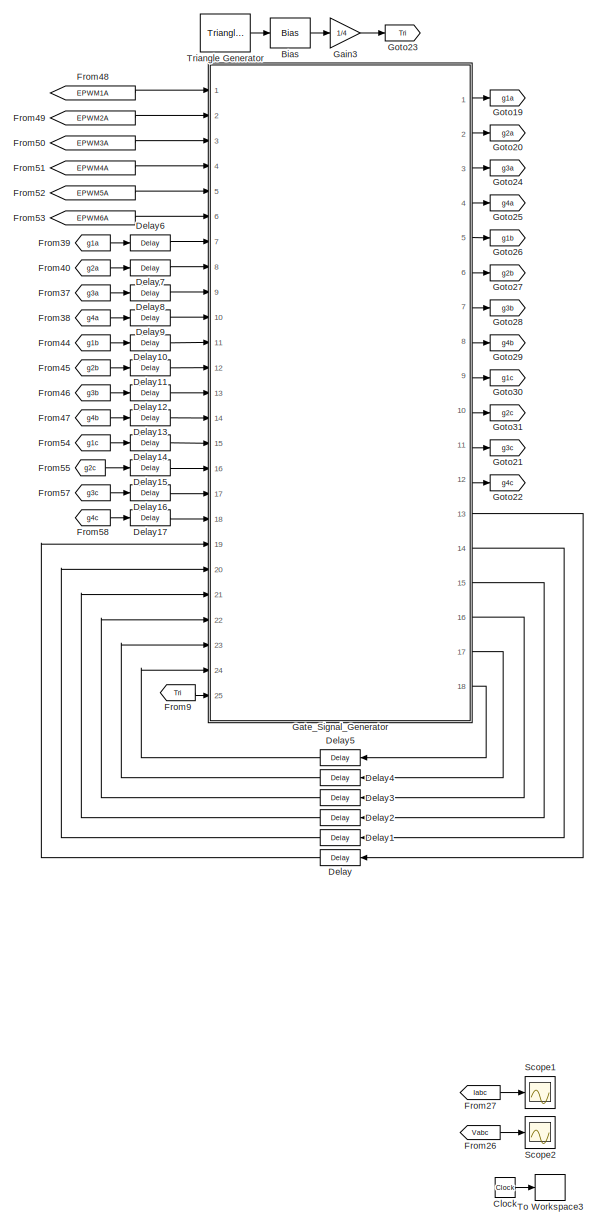
[diagram: root canvas - part 1/4, center side, full height]
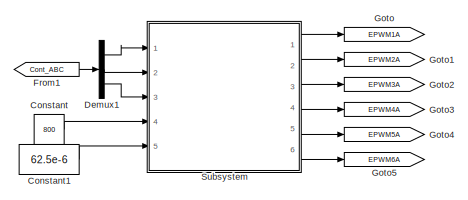
[diagram: root canvas - part 2/4, top left region]
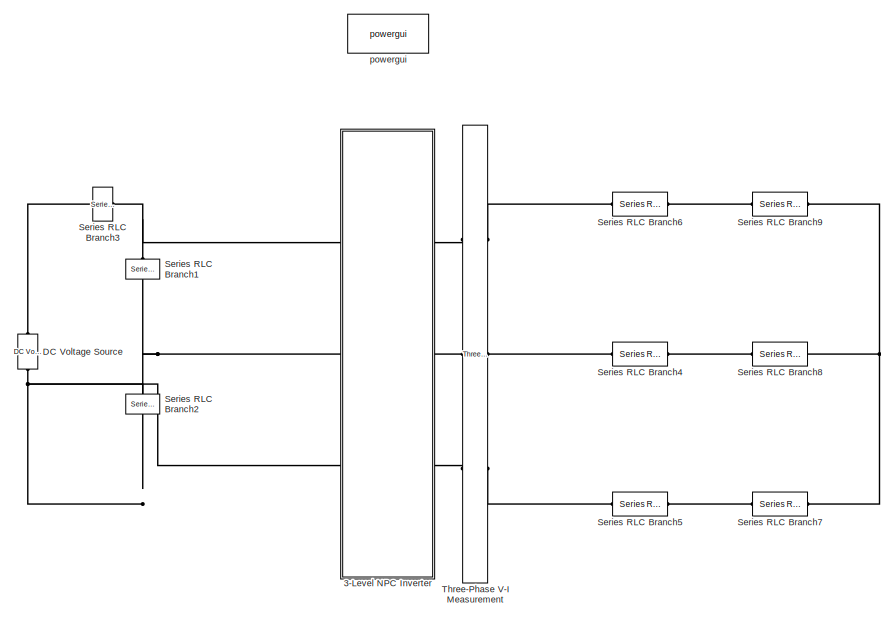
[diagram: root canvas - part 3/4, middle right region]
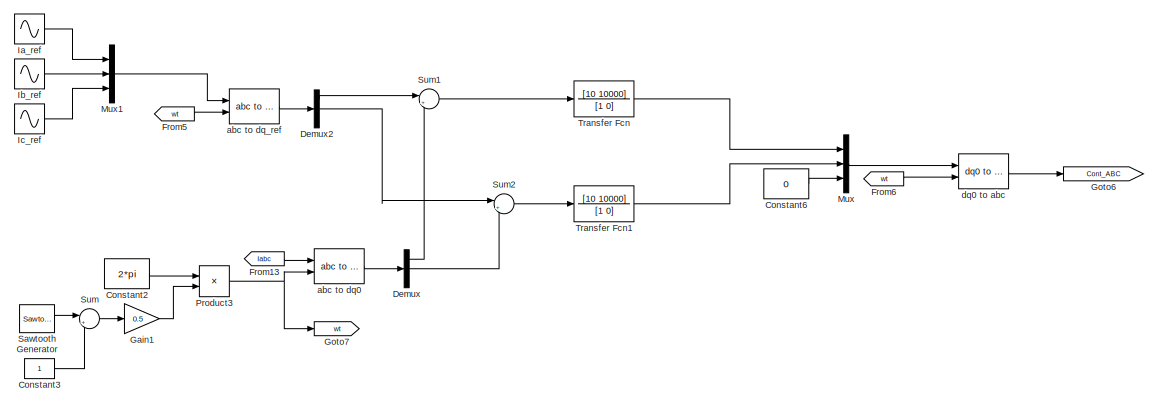
[diagram: root canvas - part 4/4, bottom right region]
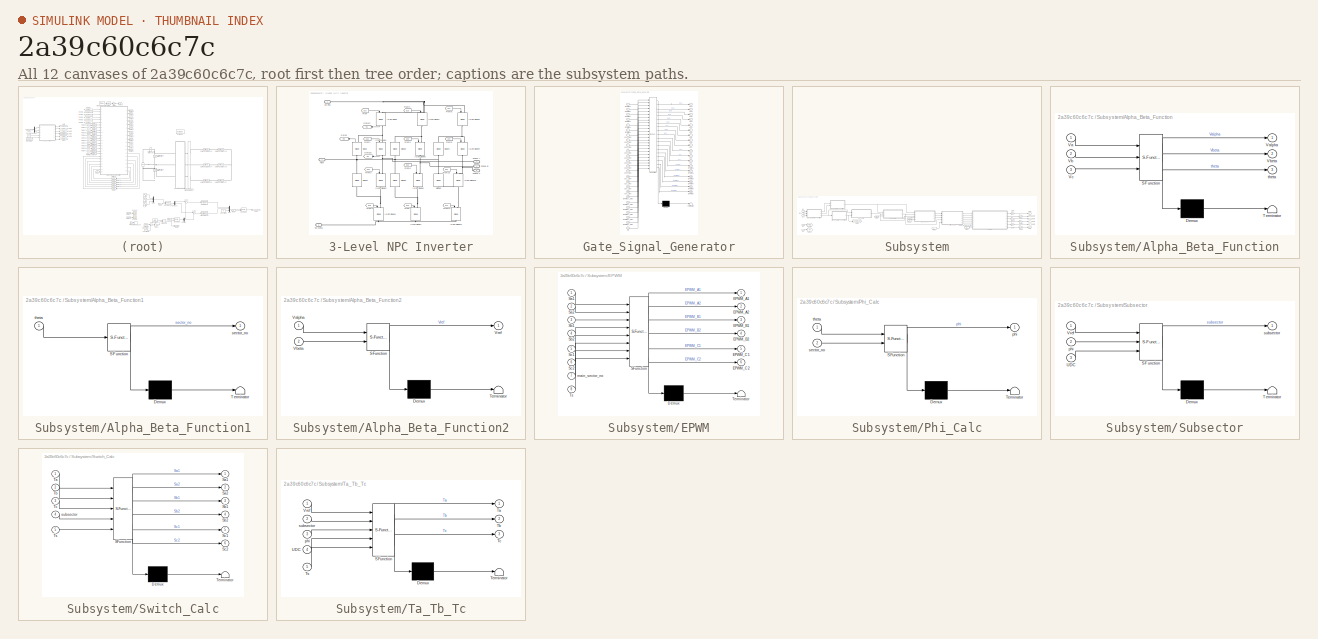
[diagram: thumbnail index - all 12 canvases of the model, root first then tree order]
MODEL slx_2a39c60c6c7c
KIND model
CONFIG AbsTol = auto
CONFIG EnableMultiTasking = off
CONFIG FixedStep = 5e-7
CONFIG MaxStep = auto
CONFIG MinStep = auto
CONFIG RelTol = 1e-3
CONFIG SampleTimeConstraint = Unconstrained
CONFIG Solver = FixedStepAuto
CONFIG SolverName = FixedStepAuto
CONFIG StartTime = 0.0
CONFIG StopTime = 2000e-3
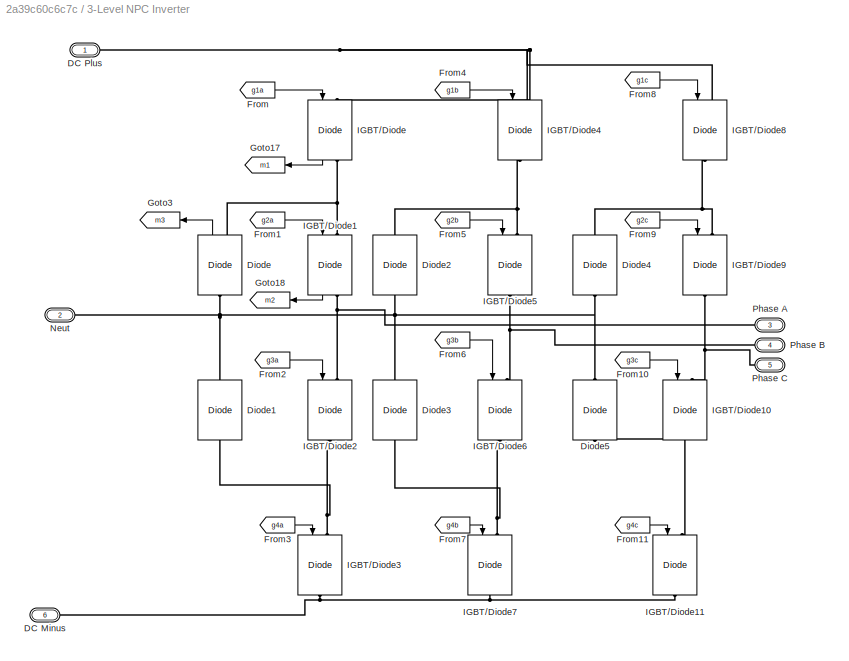
BLOCK [SubSystem] 3-Level NPC Inverter
  Ports = [0, 0, 0, 0, 0, 3, 3]
  RequestExecContextInheritance = off
BLOCK [PMIOPort] 3-Level NPC Inverter/ Neut
  Port = 2
  Side = Left
BLOCK [PMIOPort] 3-Level NPC Inverter/DC Minus
  Port = 6
  Side = Left
BLOCK [PMIOPort] 3-Level NPC Inverter/DC Plus
  Side = Left
BLOCK [Reference] 3-Level NPC Inverter/Diode  REF=powerlib/Power
Electronics/Diode
  Ports = [0, 1, 0, 0, 0, 1, 1]
  SourceBlock = powerlib/Power\nElectronics/Diode
  SourceProductBaseCode = PS
  SourceProductName = Simscape Power Systems
  SourceType = Diode
BLOCK [Reference] 3-Level NPC Inverter/Diode1  REF=powerlib/Power
Electronics/Diode
  Ports = [0, 0, 0, 0, 0, 1, 1]
  SourceBlock = powerlib/Power\nElectronics/Diode
  SourceProductBaseCode = PS
  SourceProductName = Simscape Power Systems
  SourceType = Diode
BLOCK [Reference] 3-Level NPC Inverter/Diode2  REF=powerlib/Power
Electronics/Diode
  Ports = [0, 0, 0, 0, 0, 1, 1]
  SourceBlock = powerlib/Power\nElectronics/Diode
  SourceProductBaseCode = PS
  SourceProductName = Simscape Power Systems
  SourceType = Diode
BLOCK [Reference] 3-Level NPC Inverter/Diode3  REF=powerlib/Power
Electronics/Diode
  Ports = [0, 0, 0, 0, 0, 1, 1]
  SourceBlock = powerlib/Power\nElectronics/Diode
  SourceProductBaseCode = PS
  SourceProductName = Simscape Power Systems
  SourceType = Diode
BLOCK [Reference] 3-Level NPC Inverter/Diode4  REF=powerlib/Power
Electronics/Diode
  Ports = [0, 0, 0, 0, 0, 1, 1]
  SourceBlock = powerlib/Power\nElectronics/Diode
  SourceProductBaseCode = PS
  SourceProductName = Simscape Power Systems
  SourceType = Diode
BLOCK [Reference] 3-Level NPC Inverter/Diode5  REF=powerlib/Power
Electronics/Diode
  Ports = [0, 0, 0, 0, 0, 1, 1]
  SourceBlock = powerlib/Power\nElectronics/Diode
  SourceProductBaseCode = PS
  SourceProductName = Simscape Power Systems
  SourceType = Diode
BLOCK [From] 3-Level NPC Inverter/From
  GotoTag = g1a
  TagVisibility = global
BLOCK [From] 3-Level NPC Inverter/From1
  GotoTag = g2a
  TagVisibility = global
BLOCK [From] 3-Level NPC Inverter/From10
  GotoTag = g3c
  TagVisibility = global
BLOCK [From] 3-Level NPC Inverter/From11
  GotoTag = g4c
  TagVisibility = global
BLOCK [From] 3-Level NPC Inverter/From2
  GotoTag = g3a
  TagVisibility = global
BLOCK [From] 3-Level NPC Inverter/From3
  GotoTag = g4a
  TagVisibility = global
BLOCK [From] 3-Level NPC Inverter/From4
  GotoTag = g1b
  TagVisibility = global
BLOCK [From] 3-Level NPC Inverter/From5
  GotoTag = g2b
  TagVisibility = global
BLOCK [From] 3-Level NPC Inverter/From6
  GotoTag = g3b
  TagVisibility = global
BLOCK [From] 3-Level NPC Inverter/From7
  GotoTag = g4b
  TagVisibility = global
BLOCK [From] 3-Level NPC Inverter/From8
  GotoTag = g1c
  TagVisibility = global
BLOCK [From] 3-Level NPC Inverter/From9
  GotoTag = g2c
  TagVisibility = global
BLOCK [Goto] 3-Level NPC Inverter/Goto17
  Commented = on
  GotoTag = m1
BLOCK [Goto] 3-Level NPC Inverter/Goto18
  Commented = on
  GotoTag = m2
BLOCK [Goto] 3-Level NPC Inverter/Goto3
  Commented = on
  GotoTag = m3
BLOCK [Reference] 3-Level NPC Inverter/IGBT//Diode  REF=powerlib/Power
Electronics/IGBT//Diode
  Ports = [1, 1, 0, 0, 0, 1, 1]
  SourceBlock = powerlib/Power\nElectronics/IGBT//Diode
  SourceProductBaseCode = PS
  SourceProductName = Simscape Power Systems
  SourceType = IGBT/Diode
BLOCK [Reference] 3-Level NPC Inverter/IGBT//Diode1  REF=powerlib/Power
Electronics/IGBT//Diode
  Ports = [1, 1, 0, 0, 0, 1, 1]
  SourceBlock = powerlib/Power\nElectronics/IGBT//Diode
  SourceProductBaseCode = PS
  SourceProductName = Simscape Power Systems
  SourceType = IGBT/Diode
BLOCK [Reference] 3-Level NPC Inverter/IGBT//Diode10  REF=powerlib/Power
Electronics/IGBT//Diode
  Ports = [1, 0, 0, 0, 0, 1, 1]
  SourceBlock = powerlib/Power\nElectronics/IGBT//Diode
  SourceProductBaseCode = PS
  SourceProductName = Simscape Power Systems
  SourceType = IGBT/Diode
BLOCK [Reference] 3-Level NPC Inverter/IGBT//Diode11  REF=powerlib/Power
Electronics/IGBT//Diode
  Ports = [1, 0, 0, 0, 0, 1, 1]
  SourceBlock = powerlib/Power\nElectronics/IGBT//Diode
  SourceProductBaseCode = PS
  SourceProductName = Simscape Power Systems
  SourceType = IGBT/Diode
BLOCK [Reference] 3-Level NPC Inverter/IGBT//Diode2  REF=powerlib/Power
Electronics/IGBT//Diode
  Ports = [1, 0, 0, 0, 0, 1, 1]
  SourceBlock = powerlib/Power\nElectronics/IGBT//Diode
  SourceProductBaseCode = PS
  SourceProductName = Simscape Power Systems
  SourceType = IGBT/Diode
BLOCK [Reference] 3-Level NPC Inverter/IGBT//Diode3  REF=powerlib/Power
Electronics/IGBT//Diode
  Ports = [1, 0, 0, 0, 0, 1, 1]
  SourceBlock = powerlib/Power\nElectronics/IGBT//Diode
  SourceProductBaseCode = PS
  SourceProductName = Simscape Power Systems
  SourceType = IGBT/Diode
BLOCK [Reference] 3-Level NPC Inverter/IGBT//Diode4  REF=powerlib/Power
Electronics/IGBT//Diode
  Ports = [1, 0, 0, 0, 0, 1, 1]
  SourceBlock = powerlib/Power\nElectronics/IGBT//Diode
  SourceProductBaseCode = PS
  SourceProductName = Simscape Power Systems
  SourceType = IGBT/Diode
BLOCK [Reference] 3-Level NPC Inverter/IGBT//Diode5  REF=powerlib/Power
Electronics/IGBT//Diode
  Ports = [1, 0, 0, 0, 0, 1, 1]
  SourceBlock = powerlib/Power\nElectronics/IGBT//Diode
  SourceProductBaseCode = PS
  SourceProductName = Simscape Power Systems
  SourceType = IGBT/Diode
BLOCK [Reference] 3-Level NPC Inverter/IGBT//Diode6  REF=powerlib/Power
Electronics/IGBT//Diode
  Ports = [1, 0, 0, 0, 0, 1, 1]
  SourceBlock = powerlib/Power\nElectronics/IGBT//Diode
  SourceProductBaseCode = PS
  SourceProductName = Simscape Power Systems
  SourceType = IGBT/Diode
BLOCK [Reference] 3-Level NPC Inverter/IGBT//Diode7  REF=powerlib/Power
Electronics/IGBT//Diode
  Ports = [1, 0, 0, 0, 0, 1, 1]
  SourceBlock = powerlib/Power\nElectronics/IGBT//Diode
  SourceProductBaseCode = PS
  SourceProductName = Simscape Power Systems
  SourceType = IGBT/Diode
BLOCK [Reference] 3-Level NPC Inverter/IGBT//Diode8  REF=powerlib/Power
Electronics/IGBT//Diode
  Ports = [1, 0, 0, 0, 0, 1, 1]
  SourceBlock = powerlib/Power\nElectronics/IGBT//Diode
  SourceProductBaseCode = PS
  SourceProductName = Simscape Power Systems
  SourceType = IGBT/Diode
BLOCK [Reference] 3-Level NPC Inverter/IGBT//Diode9  REF=powerlib/Power
Electronics/IGBT//Diode
  Ports = [1, 0, 0, 0, 0, 1, 1]
  SourceBlock = powerlib/Power\nElectronics/IGBT//Diode
  SourceProductBaseCode = PS
  SourceProductName = Simscape Power Systems
  SourceType = IGBT/Diode
BLOCK [PMIOPort] 3-Level NPC Inverter/Phase A
  Port = 3
  Side = Right
BLOCK [PMIOPort] 3-Level NPC Inverter/Phase B
  Port = 4
  Side = Right
BLOCK [PMIOPort] 3-Level NPC Inverter/Phase C
  Port = 5
  Side = Right
BLOCK [Bias] Bias
  Bias = 1
  SaturateOnIntegerOverflow = off
BLOCK [Clock] Clock
BLOCK [Constant] Constant
  Value = 800
BLOCK [Constant] Constant1
  Value = 62.5e-6
BLOCK [Constant] Constant2
  Value = 2*pi
BLOCK [Constant] Constant3
BLOCK [Constant] Constant6
  Value = 0
BLOCK [Reference] DC Voltage Source  REF=powerlib/Electrical
Sources/DC Voltage Source
  Ports = [0, 0, 0, 0, 0, 1, 1]
  SourceBlock = powerlib/Electrical\nSources/DC Voltage Source
  SourceProductBaseCode = PS
  SourceProductName = Simscape Power Systems
  SourceType = DC Voltage Source
BLOCK [Delay] Delay
  DelayLength = 1
  InputPortMap = u0
  Ports = [1, 1]
BLOCK [Delay] Delay1
  DelayLength = 1
  InputPortMap = u0
  Ports = [1, 1]
BLOCK [Delay] Delay10
  DelayLength = 1
  InputPortMap = u0
  Ports = [1, 1]
BLOCK [Delay] Delay11
  DelayLength = 1
  InputPortMap = u0
  Ports = [1, 1]
BLOCK [Delay] Delay12
  DelayLength = 1
  InputPortMap = u0
  Ports = [1, 1]
BLOCK [Delay] Delay13
  DelayLength = 1
  InputPortMap = u0
  Ports = [1, 1]
BLOCK [Delay] Delay14
  DelayLength = 1
  InputPortMap = u0
  Ports = [1, 1]
BLOCK [Delay] Delay15
  DelayLength = 1
  InputPortMap = u0
  Ports = [1, 1]
BLOCK [Delay] Delay16
  DelayLength = 1
  InputPortMap = u0
  Ports = [1, 1]
BLOCK [Delay] Delay17
  DelayLength = 1
  InputPortMap = u0
  Ports = [1, 1]
BLOCK [Delay] Delay2
  DelayLength = 1
  InputPortMap = u0
  Ports = [1, 1]
BLOCK [Delay] Delay3
  DelayLength = 1
  InputPortMap = u0
  Ports = [1, 1]
BLOCK [Delay] Delay4
  DelayLength = 1
  InputPortMap = u0
  Ports = [1, 1]
BLOCK [Delay] Delay5
  DelayLength = 1
  InputPortMap = u0
  Ports = [1, 1]
BLOCK [Delay] Delay6
  DelayLength = 1
  InputPortMap = u0
  Ports = [1, 1]
BLOCK [Delay] Delay7
  DelayLength = 1
  InputPortMap = u0
  Ports = [1, 1]
BLOCK [Delay] Delay8
  DelayLength = 1
  InputPortMap = u0
  Ports = [1, 1]
BLOCK [Delay] Delay9
  DelayLength = 1
  InputPortMap = u0
  Ports = [1, 1]
BLOCK [Demux] Demux
  DisplayOption = bar
  Outputs = 3
  Ports = [1, 3]
BLOCK [Demux] Demux1
  DisplayOption = bar
  Outputs = 3
  Ports = [1, 3]
BLOCK [Demux] Demux2
  DisplayOption = bar
  Outputs = 3
  Ports = [1, 3]
BLOCK [From] From1
  GotoTag = Cont_ABC
BLOCK [From] From13
  GotoTag = Iabc
  TagVisibility = global
BLOCK [From] From26
  GotoTag = Vabc
  TagVisibility = global
BLOCK [From] From27
  GotoTag = Iabc
  TagVisibility = global
BLOCK [From] From37
  GotoTag = g3a
  TagVisibility = global
BLOCK [From] From38
  GotoTag = g4a
  TagVisibility = global
BLOCK [From] From39
  GotoTag = g1a
  TagVisibility = global
BLOCK [From] From40
  GotoTag = g2a
  TagVisibility = global
BLOCK [From] From44
  GotoTag = g1b
  TagVisibility = global
BLOCK [From] From45
  GotoTag = g2b
  TagVisibility = global
BLOCK [From] From46
  GotoTag = g3b
  TagVisibility = global
BLOCK [From] From47
  GotoTag = g4b
  TagVisibility = global
BLOCK [From] From48
  GotoTag = EPWM1A
BLOCK [From] From49
  GotoTag = EPWM2A
BLOCK [From] From5
  GotoTag = wt
BLOCK [From] From50
  GotoTag = EPWM3A
BLOCK [From] From51
  GotoTag = EPWM4A
BLOCK [From] From52
  GotoTag = EPWM5A
BLOCK [From] From53
  GotoTag = EPWM6A
BLOCK [From] From54
  GotoTag = g1c
  TagVisibility = global
BLOCK [From] From55
  GotoTag = g2c
  TagVisibility = global
BLOCK [From] From57
  GotoTag = g3c
  TagVisibility = global
BLOCK [From] From58
  GotoTag = g4c
  TagVisibility = global
BLOCK [From] From6
  GotoTag = wt
BLOCK [From] From9
  GotoTag = Tri
BLOCK [Gain] Gain1
  Gain = 0.5
  OutDataTypeStr = Inherit: Inherit via internal rule
  ParamDataTypeStr = Inherit: Inherit via internal rule
  SaturateOnIntegerOverflow = off
BLOCK [Gain] Gain3
  Gain = 1/4
  OutDataTypeStr = Inherit: Inherit via internal rule
  ParamDataTypeStr = Inherit: Inherit via internal rule
  SaturateOnIntegerOverflow = off
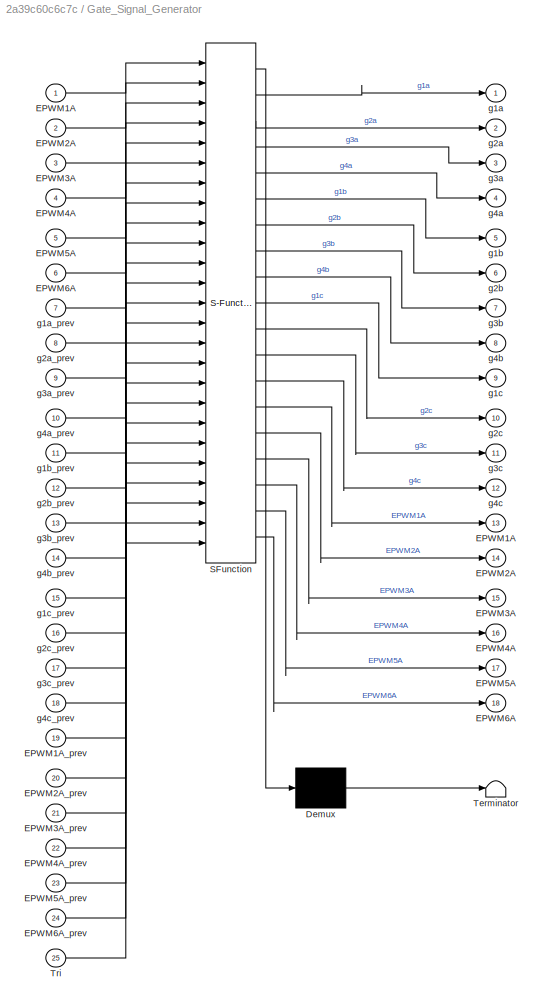
BLOCK [SubSystem] Gate_Signal_Generator
  ErrorFcn = Stateflow.Translate.translate
  PermitHierarchicalResolution = ExplicitOnly
  Ports = [25, 18]
  RequestExecContextInheritance = off
  SFBlockType = MATLAB Function
  TreatAsAtomicUnit = on
BLOCK [Demux] Gate_Signal_Generator/ Demux 
  DisplayOption = bar
  Outputs = 1
  Ports = [1, 1]
BLOCK [S-Function] Gate_Signal_Generator/ SFunction 
  EnableBusSupport = on
  FunctionName = sf_sfun
  PortCounts = [25 19]
  Ports = [25, 19]
  SFcnIsStateOwnerBlock = off
  SFunctionDeploymentMode = off
  Tag = Stateflow S-Function SVPWM_Combined 9
BLOCK [Terminator] Gate_Signal_Generator/ Terminator 
BLOCK [Outport] Gate_Signal_Generator/EPWM1A
  IconDisplay = Port number
  Port = 13
  VectorParamsAs1DForOutWhenUnconnected = on
BLOCK [Inport] Gate_Signal_Generator/EPWM1A 
  IconDisplay = Port number
BLOCK [Inport] Gate_Signal_Generator/EPWM1A_prev
  IconDisplay = Port number
  Port = 19
BLOCK [Outport] Gate_Signal_Generator/EPWM2A
  IconDisplay = Port number
  Port = 14
  VectorParamsAs1DForOutWhenUnconnected = on
BLOCK [Inport] Gate_Signal_Generator/EPWM2A 
  IconDisplay = Port number
  Port = 2
BLOCK [Inport] Gate_Signal_Generator/EPWM2A_prev
  IconDisplay = Port number
  Port = 20
BLOCK [Outport] Gate_Signal_Generator/EPWM3A
  IconDisplay = Port number
  Port = 15
  VectorParamsAs1DForOutWhenUnconnected = on
BLOCK [Inport] Gate_Signal_Generator/EPWM3A 
  IconDisplay = Port number
  Port = 3
BLOCK [Inport] Gate_Signal_Generator/EPWM3A_prev
  IconDisplay = Port number
  Port = 21
BLOCK [Outport] Gate_Signal_Generator/EPWM4A
  IconDisplay = Port number
  Port = 16
  VectorParamsAs1DForOutWhenUnconnected = on
BLOCK [Inport] Gate_Signal_Generator/EPWM4A 
  IconDisplay = Port number
  Port = 4
BLOCK [Inport] Gate_Signal_Generator/EPWM4A_prev
  IconDisplay = Port number
  Port = 22
BLOCK [Outport] Gate_Signal_Generator/EPWM5A
  IconDisplay = Port number
  Port = 17
  VectorParamsAs1DForOutWhenUnconnected = on
BLOCK [Inport] Gate_Signal_Generator/EPWM5A 
  IconDisplay = Port number
  Port = 5
BLOCK [Inport] Gate_Signal_Generator/EPWM5A_prev
  IconDisplay = Port number
  Port = 23
BLOCK [Outport] Gate_Signal_Generator/EPWM6A
  IconDisplay = Port number
  Port = 18
  VectorParamsAs1DForOutWhenUnconnected = on
BLOCK [Inport] Gate_Signal_Generator/EPWM6A 
  IconDisplay = Port number
  Port = 6
BLOCK [Inport] Gate_Signal_Generator/EPWM6A_prev
  IconDisplay = Port number
  Port = 24
BLOCK [Inport] Gate_Signal_Generator/Tri
  IconDisplay = Port number
  Port = 25
BLOCK [Outport] Gate_Signal_Generator/g1a
  IconDisplay = Port number
  VectorParamsAs1DForOutWhenUnconnected = on
BLOCK [Inport] Gate_Signal_Generator/g1a_prev
  IconDisplay = Port number
  Port = 7
BLOCK [Outport] Gate_Signal_Generator/g1b
  IconDisplay = Port number
  Port = 5
  VectorParamsAs1DForOutWhenUnconnected = on
BLOCK [Inport] Gate_Signal_Generator/g1b_prev
  IconDisplay = Port number
  Port = 11
BLOCK [Outport] Gate_Signal_Generator/g1c
  IconDisplay = Port number
  Port = 9
  VectorParamsAs1DForOutWhenUnconnected = on
BLOCK [Inport] Gate_Signal_Generator/g1c_prev
  IconDisplay = Port number
  Port = 15
BLOCK [Outport] Gate_Signal_Generator/g2a
  IconDisplay = Port number
  Port = 2
  VectorParamsAs1DForOutWhenUnconnected = on
BLOCK [Inport] Gate_Signal_Generator/g2a_prev
  IconDisplay = Port number
  Port = 8
BLOCK [Outport] Gate_Signal_Generator/g2b
  IconDisplay = Port number
  Port = 6
  VectorParamsAs1DForOutWhenUnconnected = on
BLOCK [Inport] Gate_Signal_Generator/g2b_prev
  IconDisplay = Port number
  Port = 12
BLOCK [Outport] Gate_Signal_Generator/g2c
  IconDisplay = Port number
  Port = 10
  VectorParamsAs1DForOutWhenUnconnected = on
BLOCK [Inport] Gate_Signal_Generator/g2c_prev
  IconDisplay = Port number
  Port = 16
BLOCK [Outport] Gate_Signal_Generator/g3a
  IconDisplay = Port number
  Port = 3
  VectorParamsAs1DForOutWhenUnconnected = on
BLOCK [Inport] Gate_Signal_Generator/g3a_prev
  IconDisplay = Port number
  Port = 9
BLOCK [Outport] Gate_Signal_Generator/g3b
  IconDisplay = Port number
  Port = 7
  VectorParamsAs1DForOutWhenUnconnected = on
BLOCK [Inport] Gate_Signal_Generator/g3b_prev
  IconDisplay = Port number
  Port = 13
BLOCK [Outport] Gate_Signal_Generator/g3c
  IconDisplay = Port number
  Port = 11
  VectorParamsAs1DForOutWhenUnconnected = on
BLOCK [Inport] Gate_Signal_Generator/g3c_prev
  IconDisplay = Port number
  Port = 17
BLOCK [Outport] Gate_Signal_Generator/g4a
  IconDisplay = Port number
  Port = 4
  VectorParamsAs1DForOutWhenUnconnected = on
BLOCK [Inport] Gate_Signal_Generator/g4a_prev
  IconDisplay = Port number
  Port = 10
BLOCK [Outport] Gate_Signal_Generator/g4b
  IconDisplay = Port number
  Port = 8
  VectorParamsAs1DForOutWhenUnconnected = on
BLOCK [Inport] Gate_Signal_Generator/g4b_prev
  IconDisplay = Port number
  Port = 14
BLOCK [Outport] Gate_Signal_Generator/g4c
  IconDisplay = Port number
  Port = 12
  VectorParamsAs1DForOutWhenUnconnected = on
BLOCK [Inport] Gate_Signal_Generator/g4c_prev
  IconDisplay = Port number
  Port = 18
BLOCK [Goto] Goto
  GotoTag = EPWM1A
BLOCK [Goto] Goto1
  GotoTag = EPWM2A
BLOCK [Goto] Goto19
  GotoTag = g1a
  TagVisibility = global
BLOCK [Goto] Goto2
  GotoTag = EPWM3A
BLOCK [Goto] Goto20
  GotoTag = g2a
  TagVisibility = global
BLOCK [Goto] Goto21
  GotoTag = g3c
  TagVisibility = global
BLOCK [Goto] Goto22
  GotoTag = g4c
  TagVisibility = global
BLOCK [Goto] Goto23
  GotoTag = Tri
BLOCK [Goto] Goto24
  GotoTag = g3a
  TagVisibility = global
BLOCK [Goto] Goto25
  GotoTag = g4a
  TagVisibility = global
BLOCK [Goto] Goto26
  GotoTag = g1b
  TagVisibility = global
BLOCK [Goto] Goto27
  GotoTag = g2b
  TagVisibility = global
BLOCK [Goto] Goto28
  GotoTag = g3b
  TagVisibility = global
BLOCK [Goto] Goto29
  GotoTag = g4b
  TagVisibility = global
BLOCK [Goto] Goto3
  GotoTag = EPWM4A
BLOCK [Goto] Goto30
  GotoTag = g1c
  TagVisibility = global
BLOCK [Goto] Goto31
  GotoTag = g2c
  TagVisibility = global
BLOCK [Goto] Goto4
  GotoTag = EPWM5A
BLOCK [Goto] Goto5
  GotoTag = EPWM6A
BLOCK [Goto] Goto6
  GotoTag = Cont_ABC
BLOCK [Goto] Goto7
  GotoTag = wt
BLOCK [Sin] Ia_ref
  Amplitude = 87.4
  Frequency = 50*2*pi
  Phase = -62*pi/180
  Ports = [0, 1]
  SampleTime = 0
BLOCK [Sin] Ib_ref
  Amplitude = 87.4
  Frequency = 50*2*pi
  Phase = -62*pi/180-2*pi/3
  Ports = [0, 1]
  SampleTime = 0
BLOCK [Sin] Ic_ref
  Amplitude = 87.4
  Frequency = 50*2*pi
  Phase = -62*pi/180-4*pi/3
  Ports = [0, 1]
  SampleTime = 0
BLOCK [Mux] Mux
  DisplayOption = bar
  Inputs = 3
  Ports = [3, 1]
BLOCK [Mux] Mux1
  DisplayOption = bar
  Inputs = 3
  Ports = [3, 1]
BLOCK [Product] Product3
  InputSameDT = off
  OutDataTypeStr = Inherit: Inherit via internal rule
  Ports = [2, 1]
  RndMeth = Floor
  SaturateOnIntegerOverflow = off
BLOCK [Reference] Sawtooth Generator  REF=powerlib_meascontrol/Pulse & Signal
Generators/Sawtooth
Generator
  Ports = [0, 1]
  SourceBlock = powerlib_meascontrol/Pulse & Signal\nGenerators/Sawtooth\nGenerator
  SourceProductBaseCode = PS
  SourceProductName = Simscape Power Systems
  SourceType = Sawtooth Generator
BLOCK [Scope] Scope1
  Floating = off
  NumInputPorts = 1
  Ports = [1]
  ScopeSpecificationString = Simulink.scopes.TimeScopeBlockCfg('CurrentConfiguration', extmgr.ConfigurationSet(extmgr.Configuration('Core','General UI',true),extmgr.Configuration('Core','Source UI',true),extmgr.Configuration('Sources','WiredSimulink',true,'DataLoggingVariableName','ScopeData1','DataLogging',true,'DataLoggingSaveFormat','StructureWithTime'),extmgr.Configuration('Visuals','Time Domain',true,'SerializedDisplays'...<+1879ch>
BLOCK [Scope] Scope2
  Floating = off
  NumInputPorts = 1
  Ports = [1]
  ScopeSpecificationString = Simulink.scopes.TimeScopeBlockCfg('CurrentConfiguration', extmgr.ConfigurationSet(extmgr.Configuration('Core','General UI',true),extmgr.Configuration('Core','Source UI',true),extmgr.Configuration('Sources','WiredSimulink',true,'DataLoggingVariableName','ScopeData2'),extmgr.Configuration('Visuals','Time Domain',true,'SerializedDisplays',{struct('MinYLimReal','-510.31658','MaxYLimReal','511.05643','...<+1409ch>
BLOCK [Reference] Series RLC Branch1  REF=powerlib/Elements/Series RLC Branch
  Ports = [0, 0, 0, 0, 0, 1, 1]
  SourceBlock = powerlib/Elements/Series RLC Branch
  SourceProductBaseCode = PS
  SourceProductName = Simscape Power Systems
  SourceType = Series RLC Branch
BLOCK [Reference] Series RLC Branch2  REF=powerlib/Elements/Series RLC Branch
  Ports = [0, 0, 0, 0, 0, 1, 1]
  SourceBlock = powerlib/Elements/Series RLC Branch
  SourceProductBaseCode = PS
  SourceProductName = Simscape Power Systems
  SourceType = Series RLC Branch
BLOCK [Reference] Series RLC Branch3  REF=powerlib/Elements/Series RLC Branch
  Ports = [0, 0, 0, 0, 0, 1, 1]
  SourceBlock = powerlib/Elements/Series RLC Branch
  SourceProductBaseCode = PS
  SourceProductName = Simscape Power Systems
  SourceType = Series RLC Branch
BLOCK [Reference] Series RLC Branch4  REF=powerlib/Elements/Series RLC Branch
  Ports = [0, 0, 0, 0, 0, 1, 1]
  SourceBlock = powerlib/Elements/Series RLC Branch
  SourceProductBaseCode = PS
  SourceProductName = Simscape Power Systems
  SourceType = Series RLC Branch
BLOCK [Reference] Series RLC Branch5  REF=powerlib/Elements/Series RLC Branch
  Ports = [0, 0, 0, 0, 0, 1, 1]
  SourceBlock = powerlib/Elements/Series RLC Branch
  SourceProductBaseCode = PS
  SourceProductName = Simscape Power Systems
  SourceType = Series RLC Branch
BLOCK [Reference] Series RLC Branch6  REF=powerlib/Elements/Series RLC Branch
  Ports = [0, 0, 0, 0, 0, 1, 1]
  SourceBlock = powerlib/Elements/Series RLC Branch
  SourceProductBaseCode = PS
  SourceProductName = Simscape Power Systems
  SourceType = Series RLC Branch
BLOCK [Reference] Series RLC Branch7  REF=powerlib/Elements/Series RLC Branch
  Ports = [0, 0, 0, 0, 0, 1, 1]
  SourceBlock = powerlib/Elements/Series RLC Branch
  SourceProductBaseCode = PS
  SourceProductName = Simscape Power Systems
  SourceType = Series RLC Branch
BLOCK [Reference] Series RLC Branch8  REF=powerlib/Elements/Series RLC Branch
  Ports = [0, 0, 0, 0, 0, 1, 1]
  SourceBlock = powerlib/Elements/Series RLC Branch
  SourceProductBaseCode = PS
  SourceProductName = Simscape Power Systems
  SourceType = Series RLC Branch
BLOCK [Reference] Series RLC Branch9  REF=powerlib/Elements/Series RLC Branch
  Ports = [0, 0, 0, 0, 0, 1, 1]
  SourceBlock = powerlib/Elements/Series RLC Branch
  SourceProductBaseCode = PS
  SourceProductName = Simscape Power Systems
  SourceType = Series RLC Branch
BLOCK [SubSystem] Subsystem
  Ports = [5, 6]
  RequestExecContextInheritance = off
BLOCK [SubSystem] Subsystem/Alpha_Beta_Function
  ErrorFcn = Stateflow.Translate.translate
  PermitHierarchicalResolution = ExplicitOnly
  Ports = [3, 3]
  RequestExecContextInheritance = off
  SFBlockType = MATLAB Function
  TreatAsAtomicUnit = on
BLOCK [Demux] Subsystem/Alpha_Beta_Function/ Demux 
  Outputs = 1
  Ports = [1, 1]
BLOCK [S-Function] Subsystem/Alpha_Beta_Function/ SFunction 
  EnableBusSupport = on
  FunctionName = sf_sfun
  PortCounts = [3 4]
  Ports = [3, 4]
  SFcnIsStateOwnerBlock = off
  SFunctionDeploymentMode = off
  Tag = Stateflow S-Function SVPWM_Combined 1
BLOCK [Terminator] Subsystem/Alpha_Beta_Function/ Terminator 
BLOCK [Inport] Subsystem/Alpha_Beta_Function/Va
  IconDisplay = Port number
BLOCK [Outport] Subsystem/Alpha_Beta_Function/Valpha
  IconDisplay = Port number
BLOCK [Inport] Subsystem/Alpha_Beta_Function/Vb
  IconDisplay = Port number
  Port = 2
BLOCK [Outport] Subsystem/Alpha_Beta_Function/Vbeta
  IconDisplay = Port number
  Port = 2
BLOCK [Inport] Subsystem/Alpha_Beta_Function/Vc
  IconDisplay = Port number
  Port = 3
BLOCK [Outport] Subsystem/Alpha_Beta_Function/theta
  IconDisplay = Port number
  Port = 3
BLOCK [SubSystem] Subsystem/Alpha_Beta_Function1
  ErrorFcn = Stateflow.Translate.translate
  PermitHierarchicalResolution = ExplicitOnly
  Ports = [1, 1]
  RequestExecContextInheritance = off
  SFBlockType = MATLAB Function
  TreatAsAtomicUnit = on
BLOCK [Demux] Subsystem/Alpha_Beta_Function1/ Demux 
  Outputs = 1
  Ports = [1, 1]
BLOCK [S-Function] Subsystem/Alpha_Beta_Function1/ SFunction 
  EnableBusSupport = on
  FunctionName = sf_sfun
  PortCounts = [1 2]
  Ports = [1, 2]
  SFcnIsStateOwnerBlock = off
  SFunctionDeploymentMode = off
  Tag = Stateflow S-Function SVPWM_Combined 2
BLOCK [Terminator] Subsystem/Alpha_Beta_Function1/ Terminator 
BLOCK [Outport] Subsystem/Alpha_Beta_Function1/sector_no
  IconDisplay = Port number
BLOCK [Inport] Subsystem/Alpha_Beta_Function1/theta
  IconDisplay = Port number
BLOCK [SubSystem] Subsystem/Alpha_Beta_Function2
  ErrorFcn = Stateflow.Translate.translate
  PermitHierarchicalResolution = ExplicitOnly
  Ports = [2, 1]
  RequestExecContextInheritance = off
  SFBlockType = MATLAB Function
  TreatAsAtomicUnit = on
BLOCK [Demux] Subsystem/Alpha_Beta_Function2/ Demux 
  Outputs = 1
  Ports = [1, 1]
BLOCK [S-Function] Subsystem/Alpha_Beta_Function2/ SFunction 
  EnableBusSupport = on
  FunctionName = sf_sfun
  PortCounts = [2 2]
  Ports = [2, 2]
  SFcnIsStateOwnerBlock = off
  SFunctionDeploymentMode = off
  Tag = Stateflow S-Function SVPWM_Combined 4
BLOCK [Terminator] Subsystem/Alpha_Beta_Function2/ Terminator 
BLOCK [Inport] Subsystem/Alpha_Beta_Function2/Valpha
  IconDisplay = Port number
BLOCK [Inport] Subsystem/Alpha_Beta_Function2/Vbeta
  IconDisplay = Port number
  Port = 2
BLOCK [Outport] Subsystem/Alpha_Beta_Function2/Vref
  IconDisplay = Port number
BLOCK [SubSystem] Subsystem/EPWM
  ErrorFcn = Stateflow.Translate.translate
  PermitHierarchicalResolution = ExplicitOnly
  Ports = [8, 6]
  RequestExecContextInheritance = off
  SFBlockType = MATLAB Function
  TreatAsAtomicUnit = on
BLOCK [Demux] Subsystem/EPWM/ Demux 
  Outputs = 1
  Ports = [1, 1]
BLOCK [S-Function] Subsystem/EPWM/ SFunction 
  EnableBusSupport = on
  FunctionName = sf_sfun
  PortCounts = [8 7]
  Ports = [8, 7]
  SFcnIsStateOwnerBlock = off
  SFunctionDeploymentMode = off
  Tag = Stateflow S-Function SVPWM_Combined 8
BLOCK [Terminator] Subsystem/EPWM/ Terminator 
BLOCK [Outport] Subsystem/EPWM/EPWM_A1
  IconDisplay = Port number
BLOCK [Outport] Subsystem/EPWM/EPWM_A2
  IconDisplay = Port number
  Port = 2
BLOCK [Outport] Subsystem/EPWM/EPWM_B1
  IconDisplay = Port number
  Port = 3
BLOCK [Outport] Subsystem/EPWM/EPWM_B2
  IconDisplay = Port number
  Port = 4
BLOCK [Outport] Subsystem/EPWM/EPWM_C1
  IconDisplay = Port number
  Port = 5
BLOCK [Outport] Subsystem/EPWM/EPWM_C2
  IconDisplay = Port number
  Port = 6
BLOCK [Inport] Subsystem/EPWM/Sa1
  IconDisplay = Port number
BLOCK [Inport] Subsystem/EPWM/Sa2
  IconDisplay = Port number
  Port = 2
BLOCK [Inport] Subsystem/EPWM/Sb1
  IconDisplay = Port number
  Port = 3
BLOCK [Inport] Subsystem/EPWM/Sb2
  IconDisplay = Port number
  Port = 4
BLOCK [Inport] Subsystem/EPWM/Sc1
  IconDisplay = Port number
  Port = 5
BLOCK [Inport] Subsystem/EPWM/Sc2
  IconDisplay = Port number
  Port = 6
BLOCK [Inport] Subsystem/EPWM/Ts
  IconDisplay = Port number
  Port = 8
BLOCK [Inport] Subsystem/EPWM/main_sector_no
  IconDisplay = Port number
  Port = 7
BLOCK [From] Subsystem/From
  GotoTag = VDC
BLOCK [From] Subsystem/From1
  GotoTag = VDC
BLOCK [From] Subsystem/From2
  GotoTag = Ts
BLOCK [From] Subsystem/From3
  GotoTag = sector_no
BLOCK [From] Subsystem/From4
  GotoTag = Ts
BLOCK [From] Subsystem/From5
  GotoTag = Ts
BLOCK [Gain] Subsystem/Gain
  Gain = 16000
  OutDataTypeStr = Inherit: Inherit via internal rule
  ParamDataTypeStr = Inherit: Inherit via internal rule
  SaturateOnIntegerOverflow = off
BLOCK [Gain] Subsystem/Gain1
  Gain = 16000
  OutDataTypeStr = Inherit: Inherit via internal rule
  ParamDataTypeStr = Inherit: Inherit via internal rule
  SaturateOnIntegerOverflow = off
BLOCK [Gain] Subsystem/Gain2
  Gain = 16000
  OutDataTypeStr = Inherit: Inherit via internal rule
  ParamDataTypeStr = Inherit: Inherit via internal rule
  SaturateOnIntegerOverflow = off
BLOCK [Gain] Subsystem/Gain3
  Gain = 16000
  OutDataTypeStr = Inherit: Inherit via internal rule
  ParamDataTypeStr = Inherit: Inherit via internal rule
  SaturateOnIntegerOverflow = off
BLOCK [Gain] Subsystem/Gain4
  Gain = 16000
  OutDataTypeStr = Inherit: Inherit via internal rule
  ParamDataTypeStr = Inherit: Inherit via internal rule
  SaturateOnIntegerOverflow = off
BLOCK [Gain] Subsystem/Gain5
  Gain = 16000
  OutDataTypeStr = Inherit: Inherit via internal rule
  ParamDataTypeStr = Inherit: Inherit via internal rule
  SaturateOnIntegerOverflow = off
BLOCK [Goto] Subsystem/Goto
  GotoTag = VDC
BLOCK [Goto] Subsystem/Goto1
  GotoTag = Ts
BLOCK [Goto] Subsystem/Goto2
  GotoTag = sector_no
BLOCK [Inport] Subsystem/In1
  IconDisplay = Port number and signal name
BLOCK [Inport] Subsystem/In2
  IconDisplay = Port number
  Port = 2
BLOCK [Inport] Subsystem/In3
  IconDisplay = Port number
  Port = 3
BLOCK [Inport] Subsystem/In4
  IconDisplay = Port number
  Port = 4
BLOCK [Inport] Subsystem/In5
  IconDisplay = Port number
  Port = 5
BLOCK [Outport] Subsystem/Out1
  IconDisplay = Port number
BLOCK [Outport] Subsystem/Out2
  IconDisplay = Port number
  Port = 2
BLOCK [Outport] Subsystem/Out3
  IconDisplay = Port number
  Port = 3
BLOCK [Outport] Subsystem/Out4
  IconDisplay = Port number
  Port = 4
BLOCK [Outport] Subsystem/Out5
  IconDisplay = Port number
  Port = 5
BLOCK [Outport] Subsystem/Out6
  IconDisplay = Port number
  Port = 6
BLOCK [SubSystem] Subsystem/Phi_Calc
  ErrorFcn = Stateflow.Translate.translate
  PermitHierarchicalResolution = ExplicitOnly
  Ports = [2, 1]
  RequestExecContextInheritance = off
  SFBlockType = MATLAB Function
  TreatAsAtomicUnit = on
BLOCK [Demux] Subsystem/Phi_Calc/ Demux 
  Outputs = 1
  Ports = [1, 1]
BLOCK [S-Function] Subsystem/Phi_Calc/ SFunction 
  EnableBusSupport = on
  FunctionName = sf_sfun
  PortCounts = [2 2]
  Ports = [2, 2]
  SFcnIsStateOwnerBlock = off
  SFunctionDeploymentMode = off
  Tag = Stateflow S-Function SVPWM_Combined 3
BLOCK [Terminator] Subsystem/Phi_Calc/ Terminator 
BLOCK [Outport] Subsystem/Phi_Calc/phi
  IconDisplay = Port number
BLOCK [Inport] Subsystem/Phi_Calc/sector_no
  IconDisplay = Port number
  Port = 2
BLOCK [Inport] Subsystem/Phi_Calc/theta
  IconDisplay = Port number
BLOCK [SubSystem] Subsystem/Subsector
  ErrorFcn = Stateflow.Translate.translate
  PermitHierarchicalResolution = ExplicitOnly
  Ports = [3, 1]
  RequestExecContextInheritance = off
  SFBlockType = MATLAB Function
  TreatAsAtomicUnit = on
BLOCK [Demux] Subsystem/Subsector/ Demux 
  Outputs = 1
  Ports = [1, 1]
BLOCK [S-Function] Subsystem/Subsector/ SFunction 
  EnableBusSupport = on
  FunctionName = sf_sfun
  PortCounts = [3 2]
  Ports = [3, 2]
  SFcnIsStateOwnerBlock = off
  SFunctionDeploymentMode = off
  Tag = Stateflow S-Function SVPWM_Combined 5
BLOCK [Terminator] Subsystem/Subsector/ Terminator 
BLOCK [Inport] Subsystem/Subsector/UDC
  IconDisplay = Port number
  Port = 3
BLOCK [Inport] Subsystem/Subsector/Vref
  IconDisplay = Port number
BLOCK [Inport] Subsystem/Subsector/phi
  IconDisplay = Port number
  Port = 2
BLOCK [Outport] Subsystem/Subsector/subsector
  IconDisplay = Port number
BLOCK [SubSystem] Subsystem/Switch_Calc
  ErrorFcn = Stateflow.Translate.translate
  PermitHierarchicalResolution = ExplicitOnly
  Ports = [5, 6]
  RequestExecContextInheritance = off
  SFBlockType = MATLAB Function
  TreatAsAtomicUnit = on
BLOCK [Demux] Subsystem/Switch_Calc/ Demux 
  Outputs = 1
  Ports = [1, 1]
BLOCK [S-Function] Subsystem/Switch_Calc/ SFunction 
  EnableBusSupport = on
  FunctionName = sf_sfun
  PortCounts = [5 7]
  Ports = [5, 7]
  SFcnIsStateOwnerBlock = off
  SFunctionDeploymentMode = off
  Tag = Stateflow S-Function SVPWM_Combined 7
BLOCK [Terminator] Subsystem/Switch_Calc/ Terminator 
BLOCK [Outport] Subsystem/Switch_Calc/Sa1
  IconDisplay = Port number
BLOCK [Outport] Subsystem/Switch_Calc/Sa2
  IconDisplay = Port number
  Port = 2
BLOCK [Outport] Subsystem/Switch_Calc/Sb1
  IconDisplay = Port number
  Port = 3
BLOCK [Outport] Subsystem/Switch_Calc/Sb2
  IconDisplay = Port number
  Port = 4
BLOCK [Outport] Subsystem/Switch_Calc/Sc1
  IconDisplay = Port number
  Port = 5
BLOCK [Outport] Subsystem/Switch_Calc/Sc2
  IconDisplay = Port number
  Port = 6
BLOCK [Inport] Subsystem/Switch_Calc/Ta
  IconDisplay = Port number
BLOCK [Inport] Subsystem/Switch_Calc/Tb
  IconDisplay = Port number
  Port = 2
BLOCK [Inport] Subsystem/Switch_Calc/Tc
  IconDisplay = Port number
  Port = 3
BLOCK [Inport] Subsystem/Switch_Calc/Ts
  IconDisplay = Port number
  Port = 5
BLOCK [Inport] Subsystem/Switch_Calc/subsector
  IconDisplay = Port number
  Port = 4
BLOCK [SubSystem] Subsystem/Ta_Tb_Tc
  ErrorFcn = Stateflow.Translate.translate
  PermitHierarchicalResolution = ExplicitOnly
  Ports = [5, 3]
  RequestExecContextInheritance = off
  SFBlockType = MATLAB Function
  TreatAsAtomicUnit = on
BLOCK [Demux] Subsystem/Ta_Tb_Tc/ Demux 
  Outputs = 1
  Ports = [1, 1]
BLOCK [S-Function] Subsystem/Ta_Tb_Tc/ SFunction 
  EnableBusSupport = on
  FunctionName = sf_sfun
  PortCounts = [5 4]
  Ports = [5, 4]
  SFcnIsStateOwnerBlock = off
  SFunctionDeploymentMode = off
  Tag = Stateflow S-Function SVPWM_Combined 6
BLOCK [Terminator] Subsystem/Ta_Tb_Tc/ Terminator 
BLOCK [Outport] Subsystem/Ta_Tb_Tc/Ta
  IconDisplay = Port number
BLOCK [Outport] Subsystem/Ta_Tb_Tc/Tb
  IconDisplay = Port number
  Port = 2
BLOCK [Outport] Subsystem/Ta_Tb_Tc/Tc
  IconDisplay = Port number
  Port = 3
BLOCK [Inport] Subsystem/Ta_Tb_Tc/Ts
  IconDisplay = Port number
  Port = 5
BLOCK [Inport] Subsystem/Ta_Tb_Tc/UDC
  IconDisplay = Port number
  Port = 4
BLOCK [Inport] Subsystem/Ta_Tb_Tc/Vref
  IconDisplay = Port number
BLOCK [Inport] Subsystem/Ta_Tb_Tc/phi
  IconDisplay = Port number
  Port = 3
BLOCK [Inport] Subsystem/Ta_Tb_Tc/subsector
  IconDisplay = Port number
  Port = 2
BLOCK [Sum] Sum
  IconShape = round
  InputSameDT = off
  Inputs = |++
  OutDataTypeStr = Inherit: Inherit via internal rule
  Ports = [2, 1]
  SaturateOnIntegerOverflow = off
BLOCK [Sum] Sum1
  IconShape = round
  InputSameDT = off
  Inputs = |+-
  OutDataTypeStr = Inherit: Inherit via internal rule
  Ports = [2, 1]
  SaturateOnIntegerOverflow = off
BLOCK [Sum] Sum2
  IconShape = round
  InputSameDT = off
  Inputs = |+-
  OutDataTypeStr = Inherit: Inherit via internal rule
  Ports = [2, 1]
  SaturateOnIntegerOverflow = off
BLOCK [Reference] Three-Phase V-I Measurement  REF=powerlib/Measurements/Three-Phase
V-I Measurement
  Ports = [0, 0, 0, 0, 0, 3, 3]
  SourceBlock = powerlib/Measurements/Three-Phase\nV-I Measurement
  SourceProductBaseCode = PS
  SourceProductName = Simscape Power Systems
  SourceType = Three-Phase VI Measurement
BLOCK [ToWorkspace] To Workspace3
  FixptAsFi = on
  MaxDataPoints = inf
  Ports = [1]
  SampleTime = -1
  Save2DSignal = 3-D array (concatenate along third dimension)
  VariableName = time
BLOCK [TransferFcn] Transfer Fcn
  Denominator = [1 0]
  Numerator = [10 10000]
BLOCK [TransferFcn] Transfer Fcn1
  Denominator = [1 0]
  Numerator = [10 10000]
BLOCK [Reference] Triangle Generator  REF=powerlib_meascontrol/Pulse & Signal
Generators/Triangle
Generator
  Ports = [0, 1]
  SourceBlock = powerlib_meascontrol/Pulse & Signal\nGenerators/Triangle\nGenerator
  SourceProductBaseCode = PS
  SourceProductName = Simscape Power Systems
  SourceType = Triangle Generator
BLOCK [Reference] abc to dq0  REF=powerlib_meascontrol/Transformations/abc to dq0
  Ports = [2, 1]
  SourceBlock = powerlib_meascontrol/Transformations/abc to dq0
  SourceProductBaseCode = PS
  SourceProductName = Simscape Power Systems
  SourceType = abc to dq0 Transformation
BLOCK [Reference] abc to dq_ref  REF=powerlib_meascontrol/Transformations/abc to dq0
  Ports = [2, 1]
  SourceBlock = powerlib_meascontrol/Transformations/abc to dq0
  SourceProductBaseCode = PS
  SourceProductName = Simscape Power Systems
  SourceType = abc to dq0 Transformation
BLOCK [Reference] dq0 to abc  REF=powerlib_meascontrol/Transformations/dq0 to abc
  Ports = [2, 1]
  SourceBlock = powerlib_meascontrol/Transformations/dq0 to abc
  SourceProductBaseCode = PS
  SourceProductName = Simscape Power Systems
  SourceType = dq0 to abc Transformation
BLOCK [Reference] powergui  REF=powerlib/powergui
  Ports = []
  Priority = 1
  SourceBlock = powerlib/powergui
  SourceProductBaseCode = PS
  SourceProductName = Simscape Power Systems
  SourceType = PSB option menu block
LINE 3-Level NPC Inverter/Diode:1 -> 3-Level NPC Inverter/Goto3:1
LINE 3-Level NPC Inverter/From10:1 -> 3-Level NPC Inverter/IGBT//Diode10:1
LINE 3-Level NPC Inverter/From11:1 -> 3-Level NPC Inverter/IGBT//Diode11:1
LINE 3-Level NPC Inverter/From1:1 -> 3-Level NPC Inverter/IGBT//Diode1:1
LINE 3-Level NPC Inverter/From2:1 -> 3-Level NPC Inverter/IGBT//Diode2:1
LINE 3-Level NPC Inverter/From3:1 -> 3-Level NPC Inverter/IGBT//Diode3:1
LINE 3-Level NPC Inverter/From4:1 -> 3-Level NPC Inverter/IGBT//Diode4:1
LINE 3-Level NPC Inverter/From5:1 -> 3-Level NPC Inverter/IGBT//Diode5:1
LINE 3-Level NPC Inverter/From6:1 -> 3-Level NPC Inverter/IGBT//Diode6:1
LINE 3-Level NPC Inverter/From7:1 -> 3-Level NPC Inverter/IGBT//Diode7:1
LINE 3-Level NPC Inverter/From8:1 -> 3-Level NPC Inverter/IGBT//Diode8:1
LINE 3-Level NPC Inverter/From9:1 -> 3-Level NPC Inverter/IGBT//Diode9:1
LINE 3-Level NPC Inverter/From:1 -> 3-Level NPC Inverter/IGBT//Diode:1
LINE 3-Level NPC Inverter/IGBT//Diode1:1 -> 3-Level NPC Inverter/Goto18:1
LINE 3-Level NPC Inverter/IGBT//Diode:1 -> 3-Level NPC Inverter/Goto17:1
LINE Bias:1 -> Gain3:1
LINE Clock:1 -> To Workspace3:1
LINE Constant1:1 -> Subsystem:5
LINE Constant2:1 -> Product3:1
LINE Constant3:1 -> Sum:2
LINE Constant6:1 -> Mux:3
LINE Constant:1 -> Subsystem:4
LINE Delay10:1 -> Gate_Signal_Generator:11
LINE Delay11:1 -> Gate_Signal_Generator:12
LINE Delay12:1 -> Gate_Signal_Generator:13
LINE Delay13:1 -> Gate_Signal_Generator:14
LINE Delay14:1 -> Gate_Signal_Generator:15
LINE Delay15:1 -> Gate_Signal_Generator:16
LINE Delay16:1 -> Gate_Signal_Generator:17
LINE Delay17:1 -> Gate_Signal_Generator:18
LINE Delay1:1 -> Gate_Signal_Generator:20
LINE Delay2:1 -> Gate_Signal_Generator:21
LINE Delay3:1 -> Gate_Signal_Generator:22
LINE Delay4:1 -> Gate_Signal_Generator:23
LINE Delay5:1 -> Gate_Signal_Generator:24
LINE Delay6:1 -> Gate_Signal_Generator:7
LINE Delay7:1 -> Gate_Signal_Generator:8
LINE Delay8:1 -> Gate_Signal_Generator:9
LINE Delay9:1 -> Gate_Signal_Generator:10
LINE Delay:1 -> Gate_Signal_Generator:19
LINE Demux1:1 -> Subsystem:1
LINE Demux1:2 -> Subsystem:2
LINE Demux1:3 -> Subsystem:3
LINE Demux2:1 -> Sum1:1
LINE Demux2:2 -> Sum2:1
LINE Demux:1 -> Sum1:2
LINE Demux:2 -> Sum2:2
LINE From13:1 -> abc to dq0:1
LINE From1:1 -> Demux1:1
LINE From26:1 -> Scope2:1
LINE From27:1 -> Scope1:1
LINE From37:1 -> Delay8:1
LINE From38:1 -> Delay9:1
LINE From39:1 -> Delay6:1
LINE From40:1 -> Delay7:1
LINE From44:1 -> Delay10:1
LINE From45:1 -> Delay11:1
LINE From46:1 -> Delay12:1
LINE From47:1 -> Delay13:1
LINE From48:1 -> Gate_Signal_Generator:1
LINE From49:1 -> Gate_Signal_Generator:2
LINE From50:1 -> Gate_Signal_Generator:3
LINE From51:1 -> Gate_Signal_Generator:4
LINE From52:1 -> Gate_Signal_Generator:5
LINE From53:1 -> Gate_Signal_Generator:6
LINE From54:1 -> Delay14:1
LINE From55:1 -> Delay15:1
LINE From57:1 -> Delay16:1
LINE From58:1 -> Delay17:1
LINE From5:1 -> abc to dq_ref:2
LINE From6:1 -> dq0 to abc:2
LINE From9:1 -> Gate_Signal_Generator:25
LINE Gain1:1 -> Product3:2
LINE Gain3:1 -> Goto23:1
LINE Gate_Signal_Generator:1 -> Goto19:1
LINE Gate_Signal_Generator:10 -> Goto31:1
LINE Gate_Signal_Generator:11 -> Goto21:1
LINE Gate_Signal_Generator:12 -> Goto22:1
LINE Gate_Signal_Generator:13 -> Delay:1
LINE Gate_Signal_Generator:14 -> Delay1:1
LINE Gate_Signal_Generator:15 -> Delay2:1
LINE Gate_Signal_Generator:16 -> Delay3:1
LINE Gate_Signal_Generator:17 -> Delay4:1
LINE Gate_Signal_Generator:18 -> Delay5:1
LINE Gate_Signal_Generator:2 -> Goto20:1
LINE Gate_Signal_Generator:3 -> Goto24:1
LINE Gate_Signal_Generator:4 -> Goto25:1
LINE Gate_Signal_Generator:5 -> Goto26:1
LINE Gate_Signal_Generator:6 -> Goto27:1
LINE Gate_Signal_Generator:7 -> Goto28:1
LINE Gate_Signal_Generator:8 -> Goto29:1
LINE Gate_Signal_Generator:9 -> Goto30:1
LINE Ia_ref:1 -> Mux1:1
LINE Ib_ref:1 -> Mux1:2
LINE Ic_ref:1 -> Mux1:3
LINE Mux1:1 -> abc to dq_ref:1
LINE Mux:1 -> dq0 to abc:1
NET Product3:1 -> Goto7:1, abc to dq0:2
LINE Sawtooth Generator:1 -> Sum:1
NET Subsystem/Alpha_Beta_Function1:1 -> Subsystem/Goto2:1, Subsystem/Phi_Calc:2
NET Subsystem/Alpha_Beta_Function2:1 -> Subsystem/Subsector:1, Subsystem/Ta_Tb_Tc:1
LINE Subsystem/Alpha_Beta_Function:1 -> Subsystem/Alpha_Beta_Function2:1
LINE Subsystem/Alpha_Beta_Function:2 -> Subsystem/Alpha_Beta_Function2:2
NET Subsystem/Alpha_Beta_Function:3 -> Subsystem/Alpha_Beta_Function1:1, Subsystem/Phi_Calc:1
LINE Subsystem/EPWM:1 -> Subsystem/Gain:1
LINE Subsystem/EPWM:2 -> Subsystem/Gain1:1
LINE Subsystem/EPWM:3 -> Subsystem/Gain2:1
LINE Subsystem/EPWM:4 -> Subsystem/Gain3:1
LINE Subsystem/EPWM:5 -> Subsystem/Gain4:1
LINE Subsystem/EPWM:6 -> Subsystem/Gain5:1
LINE Subsystem/From1:1 -> Subsystem/Ta_Tb_Tc:4
LINE Subsystem/From2:1 -> Subsystem/Ta_Tb_Tc:5
LINE Subsystem/From3:1 -> Subsystem/EPWM:7
LINE Subsystem/From4:1 -> Subsystem/EPWM:8
LINE Subsystem/From5:1 -> Subsystem/Switch_Calc:5
LINE Subsystem/From:1 -> Subsystem/Subsector:3
LINE Subsystem/Gain1:1 -> Subsystem/Out2:1
LINE Subsystem/Gain2:1 -> Subsystem/Out3:1
LINE Subsystem/Gain3:1 -> Subsystem/Out4:1
LINE Subsystem/Gain4:1 -> Subsystem/Out5:1
LINE Subsystem/Gain5:1 -> Subsystem/Out6:1
LINE Subsystem/Gain:1 -> Subsystem/Out1:1
LINE Subsystem/In1:1 -> Subsystem/Alpha_Beta_Function:1
LINE Subsystem/In2:1 -> Subsystem/Alpha_Beta_Function:2
LINE Subsystem/In3:1 -> Subsystem/Alpha_Beta_Function:3
LINE Subsystem/In4:1 -> Subsystem/Goto:1
LINE Subsystem/In5:1 -> Subsystem/Goto1:1
NET Subsystem/Phi_Calc:1 -> Subsystem/Subsector:2, Subsystem/Ta_Tb_Tc:3
NET Subsystem/Subsector:1 -> Subsystem/Switch_Calc:4, Subsystem/Ta_Tb_Tc:2
LINE Subsystem/Switch_Calc:1 -> Subsystem/EPWM:1
LINE Subsystem/Switch_Calc:2 -> Subsystem/EPWM:2
LINE Subsystem/Switch_Calc:3 -> Subsystem/EPWM:3
LINE Subsystem/Switch_Calc:4 -> Subsystem/EPWM:4
LINE Subsystem/Switch_Calc:5 -> Subsystem/EPWM:5
LINE Subsystem/Switch_Calc:6 -> Subsystem/EPWM:6
LINE Subsystem/Ta_Tb_Tc:1 -> Subsystem/Switch_Calc:1
LINE Subsystem/Ta_Tb_Tc:2 -> Subsystem/Switch_Calc:2
LINE Subsystem/Ta_Tb_Tc:3 -> Subsystem/Switch_Calc:3
LINE Subsystem:1 -> Goto:1
LINE Subsystem:2 -> Goto1:1
LINE Subsystem:3 -> Goto2:1
LINE Subsystem:4 -> Goto3:1
LINE Subsystem:5 -> Goto4:1
LINE Subsystem:6 -> Goto5:1
LINE Sum1:1 -> Transfer Fcn:1
LINE Sum2:1 -> Transfer Fcn1:1
LINE Sum:1 -> Gain1:1
LINE Transfer Fcn1:1 -> Mux:2
LINE Transfer Fcn:1 -> Mux:1
LINE Triangle Generator:1 -> Bias:1
LINE abc to dq0:1 -> Demux:1
LINE abc to dq_ref:1 -> Demux2:1
LINE dq0 to abc:1 -> Goto6:1
PNET net1: 3-Level NPC Inverter/ Neut:RConn1 -- 3-Level NPC Inverter/Diode1:RConn1 -- 3-Level NPC Inverter/Diode2:LConn1 -- 3-Level NPC Inverter/Diode3:RConn1 -- 3-Level NPC Inverter/Diode4:LConn1 -- 3-Level NPC Inverter/Diode5:RConn1 -- 3-Level NPC Inverter/Diode:LConn1
PNET net2: 3-Level NPC Inverter/DC Minus:RConn1 -- 3-Level NPC Inverter/IGBT//Diode11:RConn1 -- 3-Level NPC Inverter/IGBT//Diode3:RConn1 -- 3-Level NPC Inverter/IGBT//Diode7:RConn1
PNET net3: 3-Level NPC Inverter/DC Plus:RConn1 -- 3-Level NPC Inverter/IGBT//Diode4:LConn1 -- 3-Level NPC Inverter/IGBT//Diode8:LConn1 -- 3-Level NPC Inverter/IGBT//Diode:LConn1
PNET net4: 3-Level NPC Inverter/Diode1:LConn1 -- 3-Level NPC Inverter/IGBT//Diode2:RConn1 -- 3-Level NPC Inverter/IGBT//Diode3:LConn1
PNET net5: 3-Level NPC Inverter/Diode2:RConn1 -- 3-Level NPC Inverter/IGBT//Diode4:RConn1 -- 3-Level NPC Inverter/IGBT//Diode5:LConn1
PNET net6: 3-Level NPC Inverter/Diode3:LConn1 -- 3-Level NPC Inverter/IGBT//Diode6:RConn1 -- 3-Level NPC Inverter/IGBT//Diode7:LConn1
PNET net7: 3-Level NPC Inverter/Diode4:RConn1 -- 3-Level NPC Inverter/IGBT//Diode8:RConn1 -- 3-Level NPC Inverter/IGBT//Diode9:LConn1
PNET net8: 3-Level NPC Inverter/Diode5:LConn1 -- 3-Level NPC Inverter/IGBT//Diode10:RConn1 -- 3-Level NPC Inverter/IGBT//Diode11:LConn1
PNET net9: 3-Level NPC Inverter/Diode:RConn1 -- 3-Level NPC Inverter/IGBT//Diode1:LConn1 -- 3-Level NPC Inverter/IGBT//Diode:RConn1
PNET net10: 3-Level NPC Inverter/IGBT//Diode10:LConn1 -- 3-Level NPC Inverter/IGBT//Diode9:RConn1 -- 3-Level NPC Inverter/Phase C:RConn1
PNET net11: 3-Level NPC Inverter/IGBT//Diode1:RConn1 -- 3-Level NPC Inverter/IGBT//Diode2:LConn1 -- 3-Level NPC Inverter/Phase A:RConn1
PNET net12: 3-Level NPC Inverter/IGBT//Diode5:RConn1 -- 3-Level NPC Inverter/IGBT//Diode6:LConn1 -- 3-Level NPC Inverter/Phase B:RConn1
PNET net13: 3-Level NPC Inverter:LConn1 -- Series RLC Branch1:LConn1 -- Series RLC Branch3:RConn1
PNET net14: 3-Level NPC Inverter:LConn2 -- Series RLC Branch1:RConn1 -- Series RLC Branch2:LConn1
PNET net15: 3-Level NPC Inverter:LConn3 -- DC Voltage Source:LConn1 -- Series RLC Branch2:RConn1
PLINE 3-Level NPC Inverter:RConn1 -- Three-Phase V-I Measurement:LConn1
PLINE 3-Level NPC Inverter:RConn2 -- Three-Phase V-I Measurement:LConn2
PLINE 3-Level NPC Inverter:RConn3 -- Three-Phase V-I Measurement:LConn3
PLINE DC Voltage Source:RConn1 -- Series RLC Branch3:LConn1
PLINE Series RLC Branch4:LConn1 -- Three-Phase V-I Measurement:RConn2
PLINE Series RLC Branch4:RConn1 -- Series RLC Branch8:LConn1
PLINE Series RLC Branch5:LConn1 -- Three-Phase V-I Measurement:RConn3
PLINE Series RLC Branch5:RConn1 -- Series RLC Branch7:LConn1
PLINE Series RLC Branch6:LConn1 -- Three-Phase V-I Measurement:RConn1
PLINE Series RLC Branch6:RConn1 -- Series RLC Branch9:LConn1
PNET net16: Series RLC Branch7:RConn1 -- Series RLC Branch8:RConn1 -- Series RLC Branch9:RConn1
note: NET lines group one-source signal fan-out (src -> all destinations, sorted); 1:1 wires keep LINE; PNET lines group multi-terminal physical nets as a canonical sorted terminal list (undirected conserving connections); 2-terminal nets keep the pairwise PLINE form
CHART Subsystem/Alpha_Beta_Function states=1 transitions=1
  STATE_LABEL 'eML_blk_kernel()'
  STATE_LABEL 'SCRIPT:\nfunction [Valpha, Vbeta, theta] = fcn(Va, Vb, Vc)\nValpha=2/3*Va-Vb/3-Vc/3;\nVbeta=Vb/sqrt(3)-Vc/sqrt(3);\ntheta=atan2(Vbeta,Valpha);\nend\n\n'
CHART Subsystem/Alpha_Beta_Function1 states=1 transitions=1
  STATE_LABEL 'eML_blk_kernel()'
  STATE_LABEL 'SCRIPT:\nfunction sector_no = fcn(theta)\nsector_no=0;\nif (theta>=0) && (theta<pi/3)\n    sector_no=1;\nend\nif (theta>=pi/3) && (theta<2*pi/3)\n    sector_no=2;\nend\nif (theta>=2*pi/3) && (theta<pi)\n    sector_no=3;\nend\nif (theta>=-pi/3) && (theta<0)\n    sector_no=6;\nend\nif (theta>=-2*pi/3) && (theta<-pi/3)\n    sector_no=5;\nend\nif (theta>=-pi) && (theta<-2*pi/3)\n    sector_no=4;\nend\nend\n\n'
CHART Subsystem/Phi_Calc states=1 transitions=1
  STATE_LABEL 'eML_blk_kernel()'
  STATE_LABEL 'SCRIPT:\nfunction phi = fcn(theta, sector_no)\nphi=0;\nif (sector_no==1)\n    phi=theta;\nend\n\nif (sector_no==2)\n    phi=theta-pi/3;\nend\n\nif (sector_no==3)\n    phi=theta-2*pi/3;\nend\n\nif (sector_no==6)\n    phi=theta+pi/3;\nend\n\nif (sector_no==5)\n    phi=theta+2*pi/3;\nend\n\nif (sector_no==4)\n    phi=theta+pi;\nend\nend\n\n'
CHART Subsystem/Alpha_Beta_Function2 states=1 transitions=1
  STATE_LABEL 'eML_blk_kernel()'
  STATE_LABEL 'SCRIPT:\nfunction Vref = fcn(Valpha, Vbeta)\nVref=sqrt(Valpha^2+Vbeta^2);\n\n'
CHART Subsystem/Subsector states=1 transitions=1
  STATE_LABEL 'eML_blk_kernel()'
  STATE_LABEL 'SCRIPT:\nfunction subsector = fcn(Vref, phi, UDC)\nsubsector=0;\nn=Vref/(2/3*UDC);\nm1=n*2/sqrt(3)*(sin(pi/3-phi));\nm2=n*2/sqrt(3)*sin(phi);\nif (m1<0.5) && (m2<0.5) && (m1+m2<0.5)\n    subsector=1;\nend\nif (m1<0.5) && (m2<0.5) && (m1+m2>0.5)\n    subsector=2;\nend\nif (m1>0.5)\n    subsector=4;\nend\nif (m2>0.5)\n    subsector=3;\nend\n\nend\n\n'
CHART Subsystem/Ta_Tb_Tc states=1 transitions=1
  STATE_LABEL 'eML_blk_kernel()'
  STATE_LABEL 'SCRIPT:\nfunction [Ta, Tb, Tc] = fcn(Vref, subsector, phi, UDC, Ts)\nTa=0; \nTb=0; \nTc=0;\n\nm=Vref/(2/3*UDC);\nk=2/sqrt(3)*m*Ts;\n\nif (subsector==1)\n        Ta=2*k*sin(pi/3-phi);\n        Tb=Ts-2*k*sin(pi/3+phi);\n        Tc=2*k*sin(phi);\nend\nif (subsector==2)\n        Ta=Ts-2*k*sin(phi);\n        Tb=2*k*sin(pi/3+phi)-Ts;\n        Tc=Ts-2*k*sin(pi/3-phi);\nend\nif (subsector==3)\n        Ta=2*k*sin(phi)-Ts;\n   ...<+187ch>'
CHART Subsystem/Switch_Calc states=1 transitions=1
  STATE_LABEL 'eML_blk_kernel()'
  STATE_LABEL 'SCRIPT:\nfunction [Sa1, Sa2, Sb1, Sb2, Sc1, Sc2] = fcn(Ta, Tb, Tc, subsector, Ts)\nSa1=0; Sa2=0;\nSb1=0; Sb2=0;\nSc1=0; Sc2=0;\n\nif (subsector==1)\n       Sa1=(Tc+Ta)/4;\n       Sa2=Ts/2;\n       Sb1=Tc/4;\n       Sb2=Ts/2-Ta/4;\n       Sc1=0;\n       Sc2=Ts/2-Ta/4-Tc/4;\nend\nif (subsector==2)\n       Sa1=(Ta+Tc)/4+Tb/2;\n       Sa2=Ts/2;\n       Sb1=Tc/4;\n       Sb2=Ts/2-Ta/4;\n       Sc1=0;\n       Sc2=(Ta+Tc)/4...<+270ch>'
CHART Subsystem/EPWM states=1 transitions=1
  STATE_LABEL 'eML_blk_kernel()'
  STATE_LABEL 'SCRIPT:\nfunction [EPWM_A1, EPWM_A2, EPWM_B1, EPWM_B2, EPWM_C1, EPWM_C2] = fcn(Sa1, Sa2, Sb1, Sb2, Sc1, Sc2, main_sector_no, Ts)\nEPWM_A1=0; EPWM_A2=0;\nEPWM_B1=0; EPWM_B2=0;\nEPWM_C1=0; EPWM_C2=0;\n\n\nif (main_sector_no==1)\n        EPWM_A1=Sa1; EPWM_A2=Sa2;\n        EPWM_B1=Sb1; EPWM_B2=Sb2;\n        EPWM_C1=Sc1; EPWM_C2=Sc2;\nend\nif (main_sector_no==2)\n        EPWM_A1=Ts/2-Sb2; EPWM_A2=Ts/2-Sb1;\n        ...<+669ch>'
CHART Gate_Signal_Generator states=1 transitions=1
  STATE_LABEL 'eML_blk_kernel()'
  STATE_LABEL 'SCRIPT:\nfunction [g1a,g2a,g3a,g4a,g1b,g2b,g3b,g4b,g1c,g2c,g3c,g4c,EPWM1A,EPWM2A,EPWM3A,EPWM4A,EPWM5A,EPWM6A] = fcn(EPWM1A,EPWM2A,EPWM3A,EPWM4A,EPWM5A,EPWM6A,g1a_prev,g2a_prev,g3a_prev,g4a_prev,g1b_prev,g2b_prev,g3b_prev,g4b_prev,g1c_prev,g2c_prev,g3c_prev,g4c_prev,EPWM1A_prev,EPWM2A_prev,EPWM3A_prev,EPWM4A_prev,EPWM5A_prev,EPWM6A_prev,Tri)\nif(Tri>0.001)\n    EPWM1A=EPWM1A_prev;\n    EPWM2A=EPWM2A_pr...<+1700ch>'
